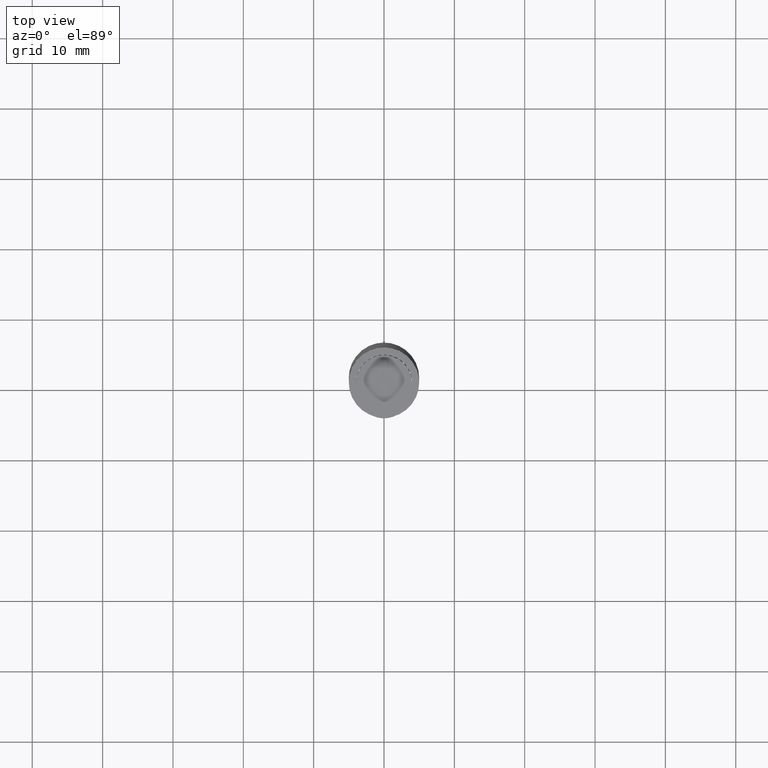
[diagram: clean part render]
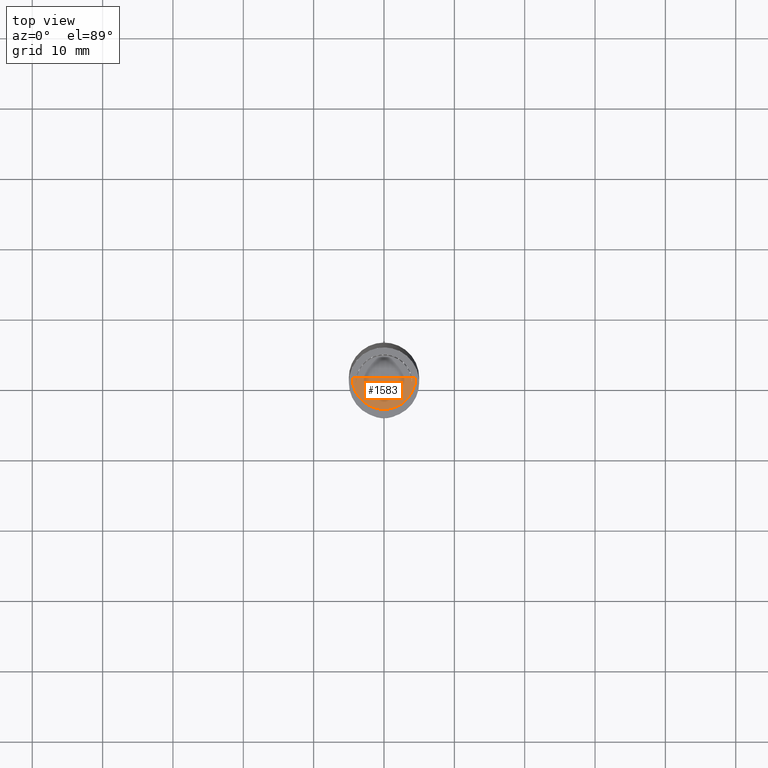
[diagram: same view with one face highlighted and labeled with its STEP entity id]
A machine part, top view. The second image highlights one B-rep face of the part: STEP entity #1583.
In plain terms, the highlighted face is a freeform B-spline surface patch.
Its self-contained STEP definition (entity closure, byte-faithful):
#1186=CARTESIAN_POINT('',(4.5,0.0,40.0));
#1190=CARTESIAN_POINT('',(-4.5,0.0,40.0));
#1191=CARTESIAN_POINT('',(0.0,0.0,40.0));
#1204=CARTESIAN_POINT('',(-4.5,-4.5,40.0));
#1205=CARTESIAN_POINT('',(0.0,-4.5,40.0));
#1206=CARTESIAN_POINT('',(4.5,-4.5,40.0));
#1568=(
BOUNDED_SURFACE()
B_SPLINE_SURFACE(1,2,(
(#1190,#1204,#1205,#1206,#1186),
(#1191,#1191,#1191,#1191,#1191)
), .UNSPECIFIED.,.F.,.F.,.F.)
B_SPLINE_SURFACE_WITH_KNOTS((2,2),(3,2,3),(
0.0,1.0),(
0.0,0.5,1.0), .UNSPECIFIED.)
GEOMETRIC_REPRESENTATION_ITEM()
RATIONAL_B_SPLINE_SURFACE(((1.0,0.707106781187,1.0,0.707106781187,1.0),
(1.0,0.707106781187,1.0,0.707106781187,1.0)
))
REPRESENTATION_ITEM('')
SURFACE()
);
#1569=(
BOUNDED_CURVE()
B_SPLINE_CURVE(2,(#1186,#1206,#1205,#1204,#1190),.UNSPECIFIED.,.F.,.F.)
B_SPLINE_CURVE_WITH_KNOTS((3,2,3),
(0.0,0.5,1.0),.UNSPECIFIED.)
CURVE()
GEOMETRIC_REPRESENTATION_ITEM()
RATIONAL_B_SPLINE_CURVE((1.0,0.707106781187,1.0,0.707106781187,1.0))
REPRESENTATION_ITEM('')
);
#1570=(
BOUNDED_CURVE()
B_SPLINE_CURVE(1,(#1190,#1191),.UNSPECIFIED.,.F.,.F.)
B_SPLINE_CURVE_WITH_KNOTS((2,2),
(0.0,1.0),.UNSPECIFIED.)
CURVE()
GEOMETRIC_REPRESENTATION_ITEM()
RATIONAL_B_SPLINE_CURVE((1.0,1.0))
REPRESENTATION_ITEM('')
);
#1571=(
BOUNDED_CURVE()
B_SPLINE_CURVE(1,(#1191,#1186),.UNSPECIFIED.,.F.,.F.)
B_SPLINE_CURVE_WITH_KNOTS((2,2),
(0.0,1.0),.UNSPECIFIED.)
CURVE()
GEOMETRIC_REPRESENTATION_ITEM()
RATIONAL_B_SPLINE_CURVE((1.0,1.0))
REPRESENTATION_ITEM('')
);
#1572=VERTEX_POINT('',#1186);
#1573=VERTEX_POINT('',#1190);
#1574=VERTEX_POINT('',#1191);
#1575=EDGE_CURVE('',#1572,#1573,#1569,.T.);
#1576=EDGE_CURVE('',#1573,#1574,#1570,.T.);
#1577=EDGE_CURVE('',#1574,#1572,#1571,.T.);
#1578=ORIENTED_EDGE('',*,*,#1575,.T.);
#1579=ORIENTED_EDGE('',*,*,#1576,.T.);
#1580=ORIENTED_EDGE('',*,*,#1577,.T.);
#1581=EDGE_LOOP('',(#1578,#1579,#1580));
#1582=FACE_OUTER_BOUND('',#1581,.T.);
#1583=ADVANCED_FACE('',(#1582),#1568,.T.);